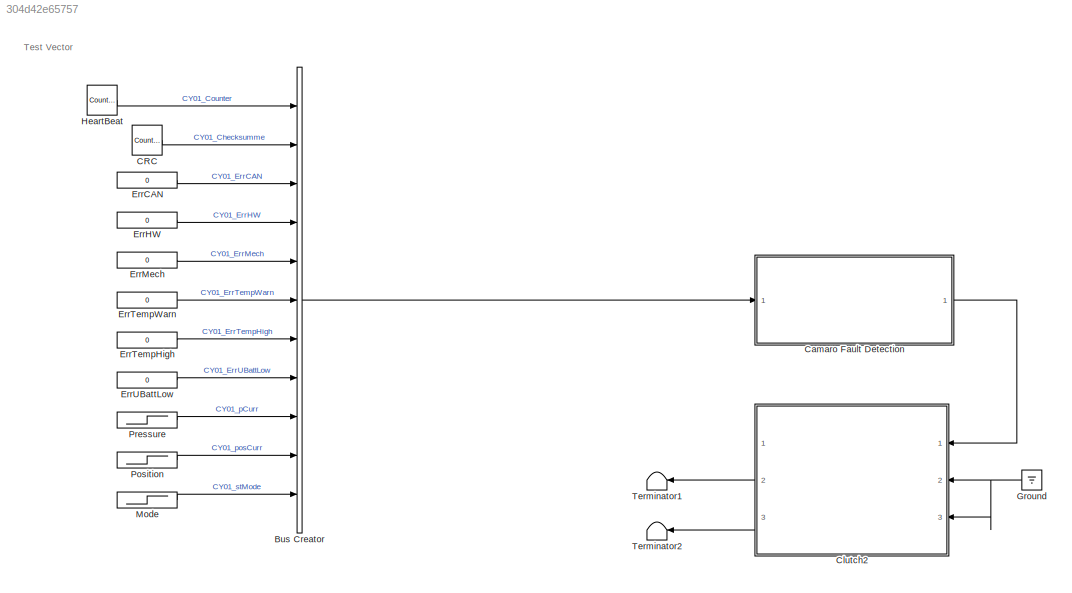
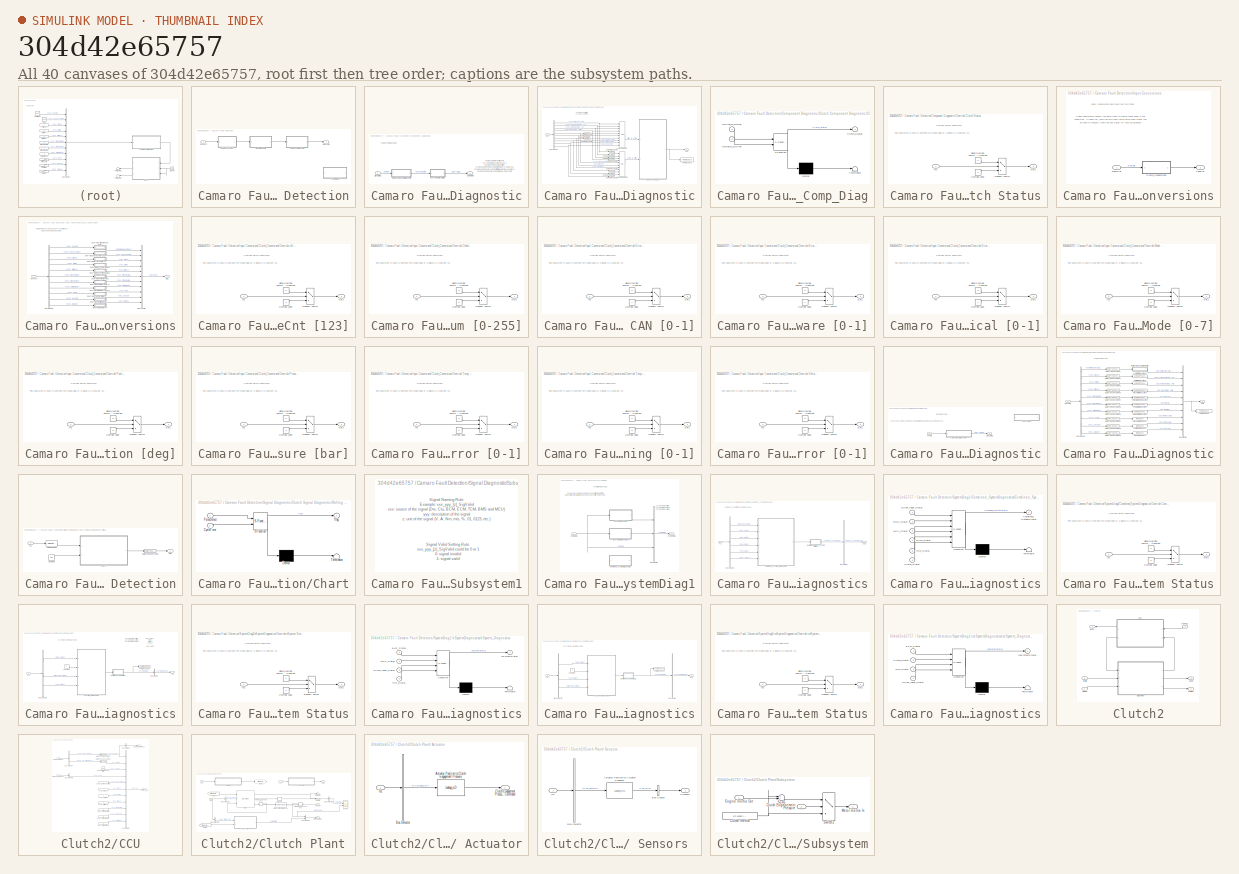
[diagram: thumbnail index - all 40 canvases of the model, root first then tree order]
MODEL slx_304d42e65757
KIND model
CONFIG AbsTol = auto
CONFIG EnableMultiTasking = off
CONFIG FixedStep = tloop
CONFIG InitFcn = clc\nclear all;\nCycleTime=49;\ntloop=0.01;
CONFIG MaxStep = auto
CONFIG MinStep = auto
CONFIG RelTol = 1e-3
CONFIG SampleTimeConstraint = Unconstrained
CONFIG Solver = FixedStepAuto
CONFIG SolverName = FixedStepAuto
CONFIG StartTime = 0.0
CONFIG StopTime = CycleTime
BLOCK [BusCreator] Bus Creator
  DisplayOption = bar
  InheritFromInputs = on
  Inputs = 11
  Ports = [11, 1]
BLOCK [Reference] CRC   REF=simulink/Sources/Counter
Free-Running
  Ports = [0, 1]
  SourceBlock = simulink/Sources/Counter\nFree-Running
  SourceProductBaseCode = SL
  SourceProductName = Simulink
  SourceType = Counter Free-Running
BLOCK [SubSystem] Camaro Fault Detection
  AncestorBlock = lib_FaultDetection/Camaro Fault Detection
  Ports = [1, 1]
  RequestExecContextInheritance = off
  Variant = off
BLOCK [SubSystem] Camaro Fault Detection/Component Diagnostic
  Ports = [1, 1]
  RequestExecContextInheritance = off
  Variant = off
BLOCK [SubSystem] Camaro Fault Detection/Component Diagnostic/Clutch Component Diagnostic
  Ports = [1, 1]
  RequestExecContextInheritance = off
  Variant = off
BLOCK [BusSelector] Camaro Fault Detection/Component Diagnostic/Clutch Component Diagnostic/Bus Selector
  OutputAsBus = off
  OutputSignals = CCM_RollingAliveActive_SigValid,CCM_CANTransmission_Valid,CCM_HardwareStatus_Valid,CCM_MechStatus_Valid,CCM_WarnTemp,CCM_ErrTemp,CCM_ErrVoltage,CCM_PistPressValid,CCM_PistPosValid,CCM_ModeValid
  Ports = [1, 10]
BLOCK [SubSystem] Camaro Fault Detection/Component Diagnostic/Clutch Component Diagnostic/Clutch_Comp_Diag
  ErrorFcn = Stateflow.Translate.translate
  PermitHierarchicalResolution = ExplicitOnly
  Ports = [2, 1]
  RequestExecContextInheritance = off
  SFBlockType = Chart
  TreatAsAtomicUnit = on
  Variant = off
BLOCK [Demux] Camaro Fault Detection/Component Diagnostic/Clutch Component Diagnostic/Clutch_Comp_Diag/ Demux 
  Outputs = 1
  Ports = [1, 1]
BLOCK [S-Function] Camaro Fault Detection/Component Diagnostic/Clutch Component Diagnostic/Clutch_Comp_Diag/ SFunction 
  EnableBusSupport = on
  FunctionName = sf_sfun
  PortCounts = [2 2]
  Ports = [2, 2]
  SFcnIsStateOwnerBlock = off
  SFunctionDeploymentMode = off
  Tag = Stateflow S-Function Clutch_TestBench 43
BLOCK [Terminator] Camaro Fault Detection/Component Diagnostic/Clutch Component Diagnostic/Clutch_Comp_Diag/ Terminator 
BLOCK [Outport] Camaro Fault Detection/Component Diagnostic/Clutch Component Diagnostic/Clutch_Comp_Diag/Clutch_Status
  IconDisplay = Port number
BLOCK [Inport] Camaro Fault Detection/Component Diagnostic/Clutch Component Diagnostic/Clutch_Comp_Diag/Offline_to_Online
  IconDisplay = Port number
BLOCK [Inport] Camaro Fault Detection/Component Diagnostic/Clutch Component Diagnostic/Clutch_Comp_Diag/Online_to_Offline
  IconDisplay = Port number
  Port = 2
BLOCK [Reference] Camaro Fault Detection/Component Diagnostic/Clutch Component Diagnostic/Compare To Zero  REF=simulink/Logic and Bit
Operations/Compare
To Zero
  Ports = [1, 1]
  SourceBlock = simulink/Logic and Bit\nOperations/Compare\nTo Zero
  SourceProductBaseCode = SL
  SourceProductName = Simulink
  SourceType = Compare To Zero
BLOCK [Reference] Camaro Fault Detection/Component Diagnostic/Clutch Component Diagnostic/Compare To Zero1  REF=simulink/Logic and Bit
Operations/Compare
To Zero
  Ports = [1, 1]
  SourceBlock = simulink/Logic and Bit\nOperations/Compare\nTo Zero
  SourceProductBaseCode = SL
  SourceProductName = Simulink
  SourceType = Compare To Zero
BLOCK [Reference] Camaro Fault Detection/Component Diagnostic/Clutch Component Diagnostic/Compare To Zero2  REF=simulink/Logic and Bit
Operations/Compare
To Zero
  Ports = [1, 1]
  SourceBlock = simulink/Logic and Bit\nOperations/Compare\nTo Zero
  SourceProductBaseCode = SL
  SourceProductName = Simulink
  SourceType = Compare To Zero
BLOCK [Reference] Camaro Fault Detection/Component Diagnostic/Clutch Component Diagnostic/Compare To Zero3  REF=simulink/Logic and Bit
Operations/Compare
To Zero
  Ports = [1, 1]
  SourceBlock = simulink/Logic and Bit\nOperations/Compare\nTo Zero
  SourceProductBaseCode = SL
  SourceProductName = Simulink
  SourceType = Compare To Zero
BLOCK [Reference] Camaro Fault Detection/Component Diagnostic/Clutch Component Diagnostic/Compare To Zero4  REF=simulink/Logic and Bit
Operations/Compare
To Zero
  Ports = [1, 1]
  SourceBlock = simulink/Logic and Bit\nOperations/Compare\nTo Zero
  SourceProductBaseCode = SL
  SourceProductName = Simulink
  SourceType = Compare To Zero
BLOCK [Reference] Camaro Fault Detection/Component Diagnostic/Clutch Component Diagnostic/Compare To Zero5  REF=simulink/Logic and Bit
Operations/Compare
To Zero
  Ports = [1, 1]
  SourceBlock = simulink/Logic and Bit\nOperations/Compare\nTo Zero
  SourceProductBaseCode = SL
  SourceProductName = Simulink
  SourceType = Compare To Zero
BLOCK [Reference] Camaro Fault Detection/Component Diagnostic/Clutch Component Diagnostic/Compare To Zero6  REF=simulink/Logic and Bit
Operations/Compare
To Zero
  Ports = [1, 1]
  SourceBlock = simulink/Logic and Bit\nOperations/Compare\nTo Zero
  SourceProductBaseCode = SL
  SourceProductName = Simulink
  SourceType = Compare To Zero
BLOCK [Reference] Camaro Fault Detection/Component Diagnostic/Clutch Component Diagnostic/Compare To Zero7  REF=simulink/Logic and Bit
Operations/Compare
To Zero
  Ports = [1, 1]
  SourceBlock = simulink/Logic and Bit\nOperations/Compare\nTo Zero
  SourceProductBaseCode = SL
  SourceProductName = Simulink
  SourceType = Compare To Zero
BLOCK [Reference] Camaro Fault Detection/Component Diagnostic/Clutch Component Diagnostic/Compare To Zero8  REF=simulink/Logic and Bit
Operations/Compare
To Zero
  Ports = [1, 1]
  SourceBlock = simulink/Logic and Bit\nOperations/Compare\nTo Zero
  SourceProductBaseCode = SL
  SourceProductName = Simulink
  SourceType = Compare To Zero
BLOCK [Reference] Camaro Fault Detection/Component Diagnostic/Clutch Component Diagnostic/Compare To Zero9  REF=simulink/Logic and Bit
Operations/Compare
To Zero
  Ports = [1, 1]
  SourceBlock = simulink/Logic and Bit\nOperations/Compare\nTo Zero
  SourceProductBaseCode = SL
  SourceProductName = Simulink
  SourceType = Compare To Zero
BLOCK [Inport] Camaro Fault Detection/Component Diagnostic/Clutch Component Diagnostic/In1
  IconDisplay = Port number
BLOCK [Logic] Camaro Fault Detection/Component Diagnostic/Clutch Component Diagnostic/Logical Operator
  AllPortsSameDT = off
  Inputs = 10
  OutDataTypeStr = boolean
  Ports = [10, 1]
BLOCK [Logic] Camaro Fault Detection/Component Diagnostic/Clutch Component Diagnostic/Logical Operator1
  AllPortsSameDT = off
  Inputs = 10
  Operator = OR
  OutDataTypeStr = boolean
  Ports = [10, 1]
BLOCK [Outport] Camaro Fault Detection/Component Diagnostic/Clutch Component Diagnostic/Out1
  IconDisplay = Port number
BLOCK [ToWorkspace] Camaro Fault Detection/Component Diagnostic/Clutch Component Diagnostic/To Workspace
  FixptAsFi = on
  MaxDataPoints = inf
  Ports = [1]
  SampleTime = -1
  Save2DSignal = 3-D array (concatenate along third dimension)
  VariableName = Clutch_Status
BLOCK [Outport] Camaro Fault Detection/Component Diagnostic/CompDiag
  IconDisplay = Port number
BLOCK [SubSystem] Camaro Fault Detection/Component Diagnostic/Override Clutch Status
  Ports = [1, 1]
  RequestExecContextInheritance = off
  Variant = off
BLOCK [Inport] Camaro Fault Detection/Component Diagnostic/Override Clutch Status/In1
  IconDisplay = Port number
BLOCK [MultiPortSwitch] Camaro Fault Detection/Component Diagnostic/Override Clutch Status/Multiport Switch
  DataPortOrder = Zero-based contiguous
  InputSameDT = off
  Inputs = 2
  Ports = [3, 1]
  SaturateOnIntegerOverflow = off
  zeroidx = on
BLOCK [Outport] Camaro Fault Detection/Component Diagnostic/Override Clutch Status/Out1
  IconDisplay = Port number
BLOCK [Constant] Camaro Fault Detection/Component Diagnostic/Override Clutch Status/Override Value
  OutDataTypeStr = double
  Value = 2
BLOCK [Constant] Camaro Fault Detection/Component Diagnostic/Override Clutch Status/Signal Override Switch 0 = Use Model 1 = Use Constant
  Value = 0
BLOCK [Inport] Camaro Fault Detection/Component Diagnostic/SignalDiag
  IconDisplay = Port number
BLOCK [Outport] Camaro Fault Detection/Diagnostic
  IconDisplay = Port number
BLOCK [SubSystem] Camaro Fault Detection/Input Conversions
  Ports = [1, 1]
  RequestExecContextInheritance = off
  Variant = off
BLOCK [SubSystem] Camaro Fault Detection/Input Conversions/Clutch_Conversions
  Ports = [1, 1]
  RequestExecContextInheritance = off
  Variant = off
BLOCK [BusCreator] Camaro Fault Detection/Input Conversions/Clutch_Conversions/Bus Creator
  DisplayOption = bar
  InheritFromInputs = on
  Inputs = 11
  Ports = [11, 1]
BLOCK [BusSelector] Camaro Fault Detection/Input Conversions/Clutch_Conversions/Bus Selector
  OutputAsBus = off
  OutputSignals = CY01_Counter,CY01_Checksumme,CY01_ErrCAN,CY01_ErrHW,CY01_ErrMech,CY01_ErrTempWarn,CY01_ErrTempHigh,CY01_ErrUBattLow,CY01_pCurr,CY01_posCurr,CY01_stMode
  Ports = [1, 11]
BLOCK [Outport] Camaro Fault Detection/Input Conversions/Clutch_Conversions/Out1
  IconDisplay = Port number
BLOCK [SubSystem] Camaro Fault Detection/Input Conversions/Clutch_Conversions/Override  rollingAliveCnt [123]
  Ports = [1, 1]
  RequestExecContextInheritance = off
  Variant = off
BLOCK [Inport] Camaro Fault Detection/Input Conversions/Clutch_Conversions/Override  rollingAliveCnt [123]/In1
  IconDisplay = Port number
BLOCK [MultiPortSwitch] Camaro Fault Detection/Input Conversions/Clutch_Conversions/Override  rollingAliveCnt [123]/Multiport Switch
  DataPortOrder = Zero-based contiguous
  InputSameDT = off
  Inputs = 2
  Ports = [3, 1]
  SaturateOnIntegerOverflow = off
  zeroidx = on
BLOCK [Outport] Camaro Fault Detection/Input Conversions/Clutch_Conversions/Override  rollingAliveCnt [123]/Out1
  IconDisplay = Port number
BLOCK [Constant] Camaro Fault Detection/Input Conversions/Clutch_Conversions/Override  rollingAliveCnt [123]/Override Value
  OutDataTypeStr = double
  Value = 0
BLOCK [Constant] Camaro Fault Detection/Input Conversions/Clutch_Conversions/Override  rollingAliveCnt [123]/Signal Override Switch 0 = Use Model 1 = Use Constant
  Value = 0
BLOCK [SubSystem] Camaro Fault Detection/Input Conversions/Clutch_Conversions/Override Checksum [0-255]
  Ports = [1, 1]
  RequestExecContextInheritance = off
  Variant = off
BLOCK [Inport] Camaro Fault Detection/Input Conversions/Clutch_Conversions/Override Checksum [0-255]/In1
  IconDisplay = Port number
BLOCK [MultiPortSwitch] Camaro Fault Detection/Input Conversions/Clutch_Conversions/Override Checksum [0-255]/Multiport Switch
  DataPortOrder = Zero-based contiguous
  InputSameDT = off
  Inputs = 2
  Ports = [3, 1]
  SaturateOnIntegerOverflow = off
  zeroidx = on
BLOCK [Outport] Camaro Fault Detection/Input Conversions/Clutch_Conversions/Override Checksum [0-255]/Out1
  IconDisplay = Port number
BLOCK [Constant] Camaro Fault Detection/Input Conversions/Clutch_Conversions/Override Checksum [0-255]/Override Value
  OutDataTypeStr = double
  Value = 0
BLOCK [Constant] Camaro Fault Detection/Input Conversions/Clutch_Conversions/Override Checksum [0-255]/Signal Override Switch 0 = Use Model 1 = Use Constant
  Value = 0
BLOCK [SubSystem] Camaro Fault Detection/Input Conversions/Clutch_Conversions/Override Error CAN [0-1]
  Ports = [1, 1]
  RequestExecContextInheritance = off
  Variant = off
BLOCK [Inport] Camaro Fault Detection/Input Conversions/Clutch_Conversions/Override Error CAN [0-1]/In1
  IconDisplay = Port number
BLOCK [MultiPortSwitch] Camaro Fault Detection/Input Conversions/Clutch_Conversions/Override Error CAN [0-1]/Multiport Switch
  DataPortOrder = Zero-based contiguous
  InputSameDT = off
  Inputs = 2
  Ports = [3, 1]
  SaturateOnIntegerOverflow = off
  zeroidx = on
BLOCK [Outport] Camaro Fault Detection/Input Conversions/Clutch_Conversions/Override Error CAN [0-1]/Out1
  IconDisplay = Port number
BLOCK [Constant] Camaro Fault Detection/Input Conversions/Clutch_Conversions/Override Error CAN [0-1]/Override Value
  OutDataTypeStr = double
BLOCK [Constant] Camaro Fault Detection/Input Conversions/Clutch_Conversions/Override Error CAN [0-1]/Signal Override Switch 0 = Use Model 1 = Use Constant
  Value = 0
BLOCK [SubSystem] Camaro Fault Detection/Input Conversions/Clutch_Conversions/Override Error Hardware [0-1]
  Ports = [1, 1]
  RequestExecContextInheritance = off
  Variant = off
BLOCK [Inport] Camaro Fault Detection/Input Conversions/Clutch_Conversions/Override Error Hardware [0-1]/In1
  IconDisplay = Port number
BLOCK [MultiPortSwitch] Camaro Fault Detection/Input Conversions/Clutch_Conversions/Override Error Hardware [0-1]/Multiport Switch
  DataPortOrder = Zero-based contiguous
  InputSameDT = off
  Inputs = 2
  Ports = [3, 1]
  SaturateOnIntegerOverflow = off
  zeroidx = on
BLOCK [Outport] Camaro Fault Detection/Input Conversions/Clutch_Conversions/Override Error Hardware [0-1]/Out1
  IconDisplay = Port number
BLOCK [Constant] Camaro Fault Detection/Input Conversions/Clutch_Conversions/Override Error Hardware [0-1]/Override Value
  OutDataTypeStr = double
BLOCK [Constant] Camaro Fault Detection/Input Conversions/Clutch_Conversions/Override Error Hardware [0-1]/Signal Override Switch 0 = Use Model 1 = Use Constant
  Value = 0
BLOCK [SubSystem] Camaro Fault Detection/Input Conversions/Clutch_Conversions/Override Error Mechanical [0-1]
  Ports = [1, 1]
  RequestExecContextInheritance = off
  Variant = off
BLOCK [Inport] Camaro Fault Detection/Input Conversions/Clutch_Conversions/Override Error Mechanical [0-1]/In1
  IconDisplay = Port number
BLOCK [MultiPortSwitch] Camaro Fault Detection/Input Conversions/Clutch_Conversions/Override Error Mechanical [0-1]/Multiport Switch
  DataPortOrder = Zero-based contiguous
  InputSameDT = off
  Inputs = 2
  Ports = [3, 1]
  SaturateOnIntegerOverflow = off
  zeroidx = on
BLOCK [Outport] Camaro Fault Detection/Input Conversions/Clutch_Conversions/Override Error Mechanical [0-1]/Out1
  IconDisplay = Port number
BLOCK [Constant] Camaro Fault Detection/Input Conversions/Clutch_Conversions/Override Error Mechanical [0-1]/Override Value
  OutDataTypeStr = double
BLOCK [Constant] Camaro Fault Detection/Input Conversions/Clutch_Conversions/Override Error Mechanical [0-1]/Signal Override Switch 0 = Use Model 1 = Use Constant
  Value = 0
BLOCK [SubSystem] Camaro Fault Detection/Input Conversions/Clutch_Conversions/Override Mode [0-7]
  Ports = [1, 1]
  RequestExecContextInheritance = off
  Variant = off
BLOCK [Inport] Camaro Fault Detection/Input Conversions/Clutch_Conversions/Override Mode [0-7]/In1
  IconDisplay = Port number
BLOCK [MultiPortSwitch] Camaro Fault Detection/Input Conversions/Clutch_Conversions/Override Mode [0-7]/Multiport Switch
  DataPortOrder = Zero-based contiguous
  InputSameDT = off
  Inputs = 2
  Ports = [3, 1]
  SaturateOnIntegerOverflow = off
  zeroidx = on
BLOCK [Outport] Camaro Fault Detection/Input Conversions/Clutch_Conversions/Override Mode [0-7]/Out1
  IconDisplay = Port number
BLOCK [Constant] Camaro Fault Detection/Input Conversions/Clutch_Conversions/Override Mode [0-7]/Override Value
  OutDataTypeStr = double
  Value = 0
BLOCK [Constant] Camaro Fault Detection/Input Conversions/Clutch_Conversions/Override Mode [0-7]/Signal Override Switch 0 = Use Model 1 = Use Constant
  Value = 0
BLOCK [SubSystem] Camaro Fault Detection/Input Conversions/Clutch_Conversions/Override Position [deg]
  Ports = [1, 1]
  RequestExecContextInheritance = off
  Variant = off
BLOCK [Inport] Camaro Fault Detection/Input Conversions/Clutch_Conversions/Override Position [deg]/In1
  IconDisplay = Port number
BLOCK [MultiPortSwitch] Camaro Fault Detection/Input Conversions/Clutch_Conversions/Override Position [deg]/Multiport Switch
  DataPortOrder = Zero-based contiguous
  InputSameDT = off
  Inputs = 2
  Ports = [3, 1]
  SaturateOnIntegerOverflow = off
  zeroidx = on
BLOCK [Outport] Camaro Fault Detection/Input Conversions/Clutch_Conversions/Override Position [deg]/Out1
  IconDisplay = Port number
BLOCK [Constant] Camaro Fault Detection/Input Conversions/Clutch_Conversions/Override Position [deg]/Override Value
  OutDataTypeStr = double
  Value = 0
BLOCK [Constant] Camaro Fault Detection/Input Conversions/Clutch_Conversions/Override Position [deg]/Signal Override Switch 0 = Use Model 1 = Use Constant
  Value = 0
BLOCK [SubSystem] Camaro Fault Detection/Input Conversions/Clutch_Conversions/Override Pressure [bar]
  Ports = [1, 1]
  RequestExecContextInheritance = off
  Variant = off
BLOCK [Inport] Camaro Fault Detection/Input Conversions/Clutch_Conversions/Override Pressure [bar]/In1
  IconDisplay = Port number
BLOCK [MultiPortSwitch] Camaro Fault Detection/Input Conversions/Clutch_Conversions/Override Pressure [bar]/Multiport Switch
  DataPortOrder = Zero-based contiguous
  InputSameDT = off
  Inputs = 2
  Ports = [3, 1]
  SaturateOnIntegerOverflow = off
  zeroidx = on
BLOCK [Outport] Camaro Fault Detection/Input Conversions/Clutch_Conversions/Override Pressure [bar]/Out1
  IconDisplay = Port number
BLOCK [Constant] Camaro Fault Detection/Input Conversions/Clutch_Conversions/Override Pressure [bar]/Override Value
  OutDataTypeStr = double
  Value = 0
BLOCK [Constant] Camaro Fault Detection/Input Conversions/Clutch_Conversions/Override Pressure [bar]/Signal Override Switch 0 = Use Model 1 = Use Constant
  Value = 0
BLOCK [SubSystem] Camaro Fault Detection/Input Conversions/Clutch_Conversions/Override Temp Error [0-1]
  Ports = [1, 1]
  RequestExecContextInheritance = off
  Variant = off
BLOCK [Inport] Camaro Fault Detection/Input Conversions/Clutch_Conversions/Override Temp Error [0-1]/In1
  IconDisplay = Port number
BLOCK [MultiPortSwitch] Camaro Fault Detection/Input Conversions/Clutch_Conversions/Override Temp Error [0-1]/Multiport Switch
  DataPortOrder = Zero-based contiguous
  InputSameDT = off
  Inputs = 2
  Ports = [3, 1]
  SaturateOnIntegerOverflow = off
  zeroidx = on
BLOCK [Outport] Camaro Fault Detection/Input Conversions/Clutch_Conversions/Override Temp Error [0-1]/Out1
  IconDisplay = Port number
BLOCK [Constant] Camaro Fault Detection/Input Conversions/Clutch_Conversions/Override Temp Error [0-1]/Override Value
  OutDataTypeStr = double
  Value = 0
BLOCK [Constant] Camaro Fault Detection/Input Conversions/Clutch_Conversions/Override Temp Error [0-1]/Signal Override Switch 0 = Use Model 1 = Use Constant
  Value = 0
BLOCK [SubSystem] Camaro Fault Detection/Input Conversions/Clutch_Conversions/Override Temp Warning [0-1]
  Ports = [1, 1]
  RequestExecContextInheritance = off
  Variant = off
BLOCK [Inport] Camaro Fault Detection/Input Conversions/Clutch_Conversions/Override Temp Warning [0-1]/In1
  IconDisplay = Port number
BLOCK [MultiPortSwitch] Camaro Fault Detection/Input Conversions/Clutch_Conversions/Override Temp Warning [0-1]/Multiport Switch
  DataPortOrder = Zero-based contiguous
  InputSameDT = off
  Inputs = 2
  Ports = [3, 1]
  SaturateOnIntegerOverflow = off
  zeroidx = on
BLOCK [Outport] Camaro Fault Detection/Input Conversions/Clutch_Conversions/Override Temp Warning [0-1]/Out1
  IconDisplay = Port number
BLOCK [Constant] Camaro Fault Detection/Input Conversions/Clutch_Conversions/Override Temp Warning [0-1]/Override Value
  OutDataTypeStr = double
  Value = 0
BLOCK [Constant] Camaro Fault Detection/Input Conversions/Clutch_Conversions/Override Temp Warning [0-1]/Signal Override Switch 0 = Use Model 1 = Use Constant
  Value = 0
BLOCK [SubSystem] Camaro Fault Detection/Input Conversions/Clutch_Conversions/Override Voltage Error [0-1]
  Ports = [1, 1]
  RequestExecContextInheritance = off
  Variant = off
BLOCK [Inport] Camaro Fault Detection/Input Conversions/Clutch_Conversions/Override Voltage Error [0-1]/In1
  IconDisplay = Port number
BLOCK [MultiPortSwitch] Camaro Fault Detection/Input Conversions/Clutch_Conversions/Override Voltage Error [0-1]/Multiport Switch
  DataPortOrder = Zero-based contiguous
  InputSameDT = off
  Inputs = 2
  Ports = [3, 1]
  SaturateOnIntegerOverflow = off
  zeroidx = on
BLOCK [Outport] Camaro Fault Detection/Input Conversions/Clutch_Conversions/Override Voltage Error [0-1]/Out1
  IconDisplay = Port number
BLOCK [Constant] Camaro Fault Detection/Input Conversions/Clutch_Conversions/Override Voltage Error [0-1]/Override Value
  OutDataTypeStr = double
  Value = 0
BLOCK [Constant] Camaro Fault Detection/Input Conversions/Clutch_Conversions/Override Voltage Error [0-1]/Signal Override Switch 0 = Use Model 1 = Use Constant
  Value = 0
BLOCK [Inport] Camaro Fault Detection/Input Conversions/Clutch_Conversions/Sensors
  IconDisplay = Port number
BLOCK [Inport] Camaro Fault Detection/Input Conversions/RawSig
  IconDisplay = Port number
BLOCK [Outport] Camaro Fault Detection/Input Conversions/VehSig
  IconDisplay = Port number
BLOCK [Inport] Camaro Fault Detection/Sensors
  IconDisplay = Port number
BLOCK [SubSystem] Camaro Fault Detection/Signal Diagnostic
  Ports = [1, 1]
  RequestExecContextInheritance = off
  Variant = off
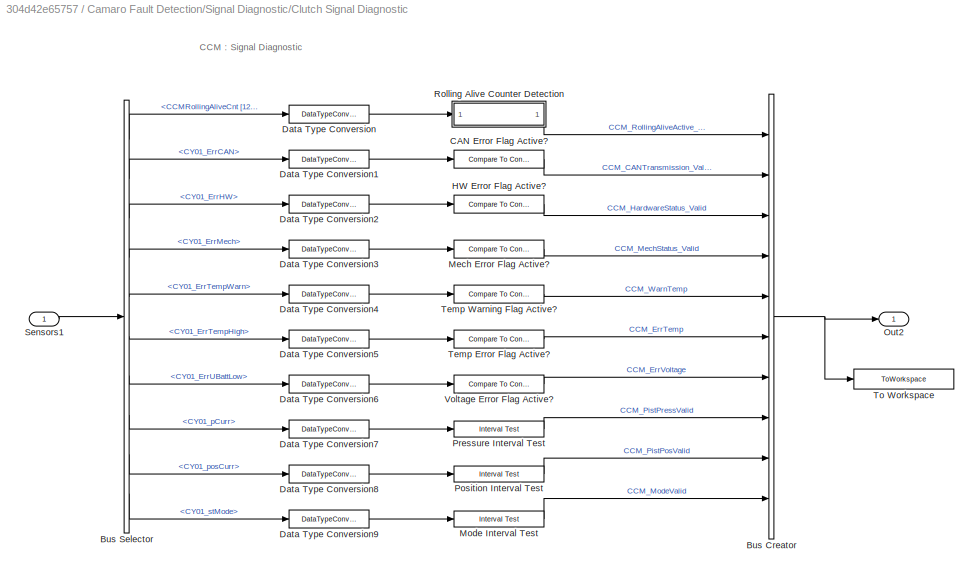
BLOCK [SubSystem] Camaro Fault Detection/Signal Diagnostic/Clutch Signal Diagnostic
  Ports = [1, 1]
  RequestExecContextInheritance = off
  Variant = off
BLOCK [BusCreator] Camaro Fault Detection/Signal Diagnostic/Clutch Signal Diagnostic/Bus Creator
  DisplayOption = bar
  InheritFromInputs = on
  Inputs = 10
  Ports = [10, 1]
BLOCK [BusSelector] Camaro Fault Detection/Signal Diagnostic/Clutch Signal Diagnostic/Bus Selector
  OutputAsBus = off
  OutputSignals = CCMRollingAliveCnt [123],CY01_ErrCAN,CY01_ErrHW,CY01_ErrMech,CY01_ErrTempWarn,CY01_ErrTempHigh,CY01_ErrUBattLow,CY01_pCurr,CY01_posCurr,CY01_stMode
  Ports = [1, 10]
BLOCK [Reference] Camaro Fault Detection/Signal Diagnostic/Clutch Signal Diagnostic/CAN Error Flag Active?  REF=simulink/Logic and Bit
Operations/Compare
To Constant
  Ports = [1, 1]
  SourceBlock = simulink/Logic and Bit\nOperations/Compare\nTo Constant
  SourceProductBaseCode = SL
  SourceProductName = Simulink
  SourceType = Compare To Constant
BLOCK [DataTypeConversion] Camaro Fault Detection/Signal Diagnostic/Clutch Signal Diagnostic/Data Type Conversion
  OutDataTypeStr = int8
  RndMeth = Floor
  SaturateOnIntegerOverflow = off
BLOCK [DataTypeConversion] Camaro Fault Detection/Signal Diagnostic/Clutch Signal Diagnostic/Data Type Conversion1
  OutDataTypeStr = boolean
  RndMeth = Floor
  SaturateOnIntegerOverflow = off
BLOCK [DataTypeConversion] Camaro Fault Detection/Signal Diagnostic/Clutch Signal Diagnostic/Data Type Conversion2
  OutDataTypeStr = boolean
  RndMeth = Floor
  SaturateOnIntegerOverflow = off
BLOCK [DataTypeConversion] Camaro Fault Detection/Signal Diagnostic/Clutch Signal Diagnostic/Data Type Conversion3
  OutDataTypeStr = boolean
  RndMeth = Floor
  SaturateOnIntegerOverflow = off
BLOCK [DataTypeConversion] Camaro Fault Detection/Signal Diagnostic/Clutch Signal Diagnostic/Data Type Conversion4
  OutDataTypeStr = boolean
  RndMeth = Floor
  SaturateOnIntegerOverflow = off
BLOCK [DataTypeConversion] Camaro Fault Detection/Signal Diagnostic/Clutch Signal Diagnostic/Data Type Conversion5
  OutDataTypeStr = boolean
  RndMeth = Floor
  SaturateOnIntegerOverflow = off
BLOCK [DataTypeConversion] Camaro Fault Detection/Signal Diagnostic/Clutch Signal Diagnostic/Data Type Conversion6
  OutDataTypeStr = boolean
  RndMeth = Floor
  SaturateOnIntegerOverflow = off
BLOCK [DataTypeConversion] Camaro Fault Detection/Signal Diagnostic/Clutch Signal Diagnostic/Data Type Conversion7
  OutDataTypeStr = double
  RndMeth = Floor
  SaturateOnIntegerOverflow = off
BLOCK [DataTypeConversion] Camaro Fault Detection/Signal Diagnostic/Clutch Signal Diagnostic/Data Type Conversion8
  OutDataTypeStr = double
  RndMeth = Floor
  SaturateOnIntegerOverflow = off
BLOCK [DataTypeConversion] Camaro Fault Detection/Signal Diagnostic/Clutch Signal Diagnostic/Data Type Conversion9
  OutDataTypeStr = int8
  RndMeth = Floor
  SaturateOnIntegerOverflow = off
BLOCK [Reference] Camaro Fault Detection/Signal Diagnostic/Clutch Signal Diagnostic/HW Error Flag Active?  REF=simulink/Logic and Bit
Operations/Compare
To Constant
  Ports = [1, 1]
  SourceBlock = simulink/Logic and Bit\nOperations/Compare\nTo Constant
  SourceProductBaseCode = SL
  SourceProductName = Simulink
  SourceType = Compare To Constant
BLOCK [Reference] Camaro Fault Detection/Signal Diagnostic/Clutch Signal Diagnostic/Mech Error Flag Active?  REF=simulink/Logic and Bit
Operations/Compare
To Constant
  Ports = [1, 1]
  SourceBlock = simulink/Logic and Bit\nOperations/Compare\nTo Constant
  SourceProductBaseCode = SL
  SourceProductName = Simulink
  SourceType = Compare To Constant
BLOCK [Reference] Camaro Fault Detection/Signal Diagnostic/Clutch Signal Diagnostic/Mode Interval Test  REF=simulink/Logic and Bit
Operations/Interval Test
  Ports = [1, 1]
  SourceBlock = simulink/Logic and Bit\nOperations/Interval Test
  SourceProductBaseCode = SL
  SourceProductName = Simulink
  SourceType = Interval Test
BLOCK [Outport] Camaro Fault Detection/Signal Diagnostic/Clutch Signal Diagnostic/Out2
  IconDisplay = Port number
BLOCK [Reference] Camaro Fault Detection/Signal Diagnostic/Clutch Signal Diagnostic/Position Interval Test  REF=simulink/Logic and Bit
Operations/Interval Test
  Ports = [1, 1]
  SourceBlock = simulink/Logic and Bit\nOperations/Interval Test
  SourceProductBaseCode = SL
  SourceProductName = Simulink
  SourceType = Interval Test
BLOCK [Reference] Camaro Fault Detection/Signal Diagnostic/Clutch Signal Diagnostic/Pressure Interval Test  REF=simulink/Logic and Bit
Operations/Interval Test
  Ports = [1, 1]
  SourceBlock = simulink/Logic and Bit\nOperations/Interval Test
  SourceProductBaseCode = SL
  SourceProductName = Simulink
  SourceType = Interval Test
BLOCK [SubSystem] Camaro Fault Detection/Signal Diagnostic/Clutch Signal Diagnostic/Rolling Alive Counter Detection
  Ports = [1, 1]
  RequestExecContextInheritance = off
  Variant = off
BLOCK [SubSystem] Camaro Fault Detection/Signal Diagnostic/Clutch Signal Diagnostic/Rolling Alive Counter Detection/Chart
  ErrorFcn = Stateflow.Translate.translate
  PermitHierarchicalResolution = ExplicitOnly
  Ports = [2, 1]
  RequestExecContextInheritance = off
  SFBlockType = Chart
  TreatAsAtomicUnit = on
  Variant = off
BLOCK [Demux] Camaro Fault Detection/Signal Diagnostic/Clutch Signal Diagnostic/Rolling Alive Counter Detection/Chart/ Demux 
  Outputs = 1
  Ports = [1, 1]
BLOCK [S-Function] Camaro Fault Detection/Signal Diagnostic/Clutch Signal Diagnostic/Rolling Alive Counter Detection/Chart/ SFunction 
  EnableBusSupport = on
  FunctionName = sf_sfun
  Parameters = tloop
  PortCounts = [2 2]
  Ports = [2, 2]
  SFcnIsStateOwnerBlock = off
  SFunctionDeploymentMode = off
  Tag = Stateflow S-Function Clutch_TestBench 10
BLOCK [Terminator] Camaro Fault Detection/Signal Diagnostic/Clutch Signal Diagnostic/Rolling Alive Counter Detection/Chart/ Terminator 
BLOCK [Inport] Camaro Fault Detection/Signal Diagnostic/Clutch Signal Diagnostic/Rolling Alive Counter Detection/Chart/CycleTime
  IconDisplay = Port number
  Port = 2
BLOCK [Inport] Camaro Fault Detection/Signal Diagnostic/Clutch Signal Diagnostic/Rolling Alive Counter Detection/Chart/PulseDetect
  IconDisplay = Port number
BLOCK [Outport] Camaro Fault Detection/Signal Diagnostic/Clutch Signal Diagnostic/Rolling Alive Counter Detection/Chart/flag
  IconDisplay = Port number
BLOCK [Constant] Camaro Fault Detection/Signal Diagnostic/Clutch Signal Diagnostic/Rolling Alive Counter Detection/Constant
  Value = 0.01
BLOCK [DataTypeConversion] Camaro Fault Detection/Signal Diagnostic/Clutch Signal Diagnostic/Rolling Alive Counter Detection/Data Type Conversion
  OutDataTypeStr = boolean
  RndMeth = Floor
  SaturateOnIntegerOverflow = off
BLOCK [Reference] Camaro Fault Detection/Signal Diagnostic/Clutch Signal Diagnostic/Rolling Alive Counter Detection/Detect Change  REF=simulink/Logic and Bit
Operations/Detect
Change
  Ports = [1, 1]
  SourceBlock = simulink/Logic and Bit\nOperations/Detect\nChange
  SourceProductBaseCode = SL
  SourceProductName = Simulink
  SourceType = Detect Change
BLOCK [Inport] Camaro Fault Detection/Signal Diagnostic/Clutch Signal Diagnostic/Rolling Alive Counter Detection/In1
  IconDisplay = Port number
BLOCK [Outport] Camaro Fault Detection/Signal Diagnostic/Clutch Signal Diagnostic/Rolling Alive Counter Detection/Out1
  IconDisplay = Port number
BLOCK [Inport] Camaro Fault Detection/Signal Diagnostic/Clutch Signal Diagnostic/Sensors1
  IconDisplay = Port number
BLOCK [Reference] Camaro Fault Detection/Signal Diagnostic/Clutch Signal Diagnostic/Temp Error Flag Active?  REF=simulink/Logic and Bit
Operations/Compare
To Constant
  Ports = [1, 1]
  SourceBlock = simulink/Logic and Bit\nOperations/Compare\nTo Constant
  SourceProductBaseCode = SL
  SourceProductName = Simulink
  SourceType = Compare To Constant
BLOCK [Reference] Camaro Fault Detection/Signal Diagnostic/Clutch Signal Diagnostic/Temp Warning Flag Active?  REF=simulink/Logic and Bit
Operations/Compare
To Constant
  Ports = [1, 1]
  SourceBlock = simulink/Logic and Bit\nOperations/Compare\nTo Constant
  SourceProductBaseCode = SL
  SourceProductName = Simulink
  SourceType = Compare To Constant
BLOCK [ToWorkspace] Camaro Fault Detection/Signal Diagnostic/Clutch Signal Diagnostic/To Workspace
  FixptAsFi = on
  MaxDataPoints = inf
  Ports = [1]
  SampleTime = -1
  Save2DSignal = 3-D array (concatenate along third dimension)
  VariableName = Signal_Diagnostic
BLOCK [Reference] Camaro Fault Detection/Signal Diagnostic/Clutch Signal Diagnostic/Voltage Error Flag Active?  REF=simulink/Logic and Bit
Operations/Compare
To Constant
  Ports = [1, 1]
  SourceBlock = simulink/Logic and Bit\nOperations/Compare\nTo Constant
  SourceProductBaseCode = SL
  SourceProductName = Simulink
  SourceType = Compare To Constant
BLOCK [Outport] Camaro Fault Detection/Signal Diagnostic/SignalDiag
  IconDisplay = Port number
BLOCK [SubSystem] Camaro Fault Detection/Signal Diagnostic/Subsystem1
  Ports = []
  RequestExecContextInheritance = off
  Variant = off
BLOCK [Inport] Camaro Fault Detection/Signal Diagnostic/VehSig
  IconDisplay = Port number
BLOCK [SubSystem] Camaro Fault Detection/SystemDiag1
  AncestorBlock = lib_SystemDiag/SystemDiag
  Commented = on
  Ports = [1, 1]
  RequestExecContextInheritance = off
  Variant = off
BLOCK [BusCreator] Camaro Fault Detection/SystemDiag1/Bus Creator
  DisplayOption = bar
  InheritFromInputs = on
  Inputs = 3
  Ports = [3, 1]
BLOCK [SubSystem] Camaro Fault Detection/SystemDiag1/Combined_SystemDiagnostics
  Commented = through
  Ports = [1, 1]
  RequestExecContextInheritance = off
  Variant = off
BLOCK [BusCreator] Camaro Fault Detection/SystemDiag1/Combined_SystemDiagnostics/Bus Creator
  DisplayOption = bar
  InheritFromInputs = on
  Inputs = 1
  Ports = [1, 1]
BLOCK [BusSelector] Camaro Fault Detection/SystemDiag1/Combined_SystemDiagnostics/Bus Selector
  OutputAsBus = off
  OutputSignals = Driver_Input_Status.Driver_Input_Status,BMS_Status.BMS_Status,MCU_Status.MCU_Status,ECM_Status.ECM_Status,TCM_CompDiag.TCM_Status,Clutch_Status.Clutch_Status
  Ports = [1, 6]
BLOCK [SubSystem] Camaro Fault Detection/SystemDiag1/Combined_SystemDiagnostics/Combined_System_Diagnostics
  ErrorFcn = Stateflow.Translate.translate
  PermitHierarchicalResolution = ExplicitOnly
  Ports = [6, 1]
  RequestExecContextInheritance = off
  SFBlockType = Chart
  TreatAsAtomicUnit = on
  Variant = off
BLOCK [Demux] Camaro Fault Detection/SystemDiag1/Combined_SystemDiagnostics/Combined_System_Diagnostics/ Demux 
  Outputs = 1
  Ports = [1, 1]
BLOCK [S-Function] Camaro Fault Detection/SystemDiag1/Combined_SystemDiagnostics/Combined_System_Diagnostics/ SFunction 
  EnableBusSupport = on
  FunctionName = sf_sfun
  PortCounts = [6 2]
  Ports = [6, 2]
  SFcnIsStateOwnerBlock = off
  SFunctionDeploymentMode = off
  Tag = Stateflow S-Function Clutch_TestBench 1
BLOCK [Terminator] Camaro Fault Detection/SystemDiag1/Combined_SystemDiagnostics/Combined_System_Diagnostics/ Terminator 
BLOCK [Inport] Camaro Fault Detection/SystemDiag1/Combined_SystemDiagnostics/Combined_System_Diagnostics/BMS_Status
  IconDisplay = Port number
  Port = 2
BLOCK [Inport] Camaro Fault Detection/SystemDiag1/Combined_SystemDiagnostics/Combined_System_Diagnostics/Clutch_Status
  IconDisplay = Port number
  Port = 6
BLOCK [Outport] Camaro Fault Detection/SystemDiag1/Combined_SystemDiagnostics/Combined_System_Diagnostics/Combined_SystemStatus
  IconDisplay = Port number
BLOCK [Inport] Camaro Fault Detection/SystemDiag1/Combined_SystemDiagnostics/Combined_System_Diagnostics/Driver_Input_Status
  IconDisplay = Port number
BLOCK [Inport] Camaro Fault Detection/SystemDiag1/Combined_SystemDiagnostics/Combined_System_Diagnostics/ECM_Status
  IconDisplay = Port number
  Port = 4
BLOCK [Inport] Camaro Fault Detection/SystemDiag1/Combined_SystemDiagnostics/Combined_System_Diagnostics/MCU_Status
  IconDisplay = Port number
  Port = 3
BLOCK [Inport] Camaro Fault Detection/SystemDiag1/Combined_SystemDiagnostics/Combined_System_Diagnostics/TCM_Status
  IconDisplay = Port number
  Port = 5
BLOCK [Inport] Camaro Fault Detection/SystemDiag1/Combined_SystemDiagnostics/In1
  IconDisplay = Port number
BLOCK [Outport] Camaro Fault Detection/SystemDiag1/Combined_SystemDiagnostics/Out1
  IconDisplay = Port number
BLOCK [SubSystem] Camaro Fault Detection/SystemDiag1/Combined_SystemDiagnostics/Override Combined_System Status
  Ports = [1, 1]
  RequestExecContextInheritance = off
  Variant = off
BLOCK [Inport] Camaro Fault Detection/SystemDiag1/Combined_SystemDiagnostics/Override Combined_System Status/In1
  IconDisplay = Port number
BLOCK [MultiPortSwitch] Camaro Fault Detection/SystemDiag1/Combined_SystemDiagnostics/Override Combined_System Status/Multiport Switch
  DataPortOrder = Zero-based contiguous
  InputSameDT = off
  Inputs = 2
  Ports = [3, 1]
  SaturateOnIntegerOverflow = off
  zeroidx = on
BLOCK [Outport] Camaro Fault Detection/SystemDiag1/Combined_SystemDiagnostics/Override Combined_System Status/Out1
  IconDisplay = Port number
BLOCK [Constant] Camaro Fault Detection/SystemDiag1/Combined_SystemDiagnostics/Override Combined_System Status/Override Value
  OutDataTypeStr = double
  Value = 0
BLOCK [Constant] Camaro Fault Detection/SystemDiag1/Combined_SystemDiagnostics/Override Combined_System Status/Signal Override Switch 0 = Use Model 1 = Use Constant
  Value = 0
BLOCK [Inport] Camaro Fault Detection/SystemDiag1/CompDiag
  IconDisplay = Port number
BLOCK [Outport] Camaro Fault Detection/SystemDiag1/SystemDiag
  IconDisplay = Port number
BLOCK [SubSystem] Camaro Fault Detection/SystemDiag1/eSystemDiagnostics
  Ports = [1, 1]
  RequestExecContextInheritance = off
  Variant = off
BLOCK [BusCreator] Camaro Fault Detection/SystemDiag1/eSystemDiagnostics/Bus Creator
  DisplayOption = bar
  InheritFromInputs = on
  Inputs = 1
  Ports = [1, 1]
BLOCK [BusSelector] Camaro Fault Detection/SystemDiag1/eSystemDiagnostics/Bus Selector
  OutputAsBus = off
  OutputSignals = BMS_Status,Driver_Input_Status,TCM_Status
  Ports = [1, 3]
BLOCK [Constant] Camaro Fault Detection/SystemDiag1/eSystemDiagnostics/Constant
  Value = 2
BLOCK [Inport] Camaro Fault Detection/SystemDiag1/eSystemDiagnostics/In1
  IconDisplay = Port number
BLOCK [Outport] Camaro Fault Detection/SystemDiag1/eSystemDiagnostics/Out1
  IconDisplay = Port number
BLOCK [SubSystem] Camaro Fault Detection/SystemDiag1/eSystemDiagnostics/Override eSystem Status
  Ports = [1, 1]
  RequestExecContextInheritance = off
  Variant = off
BLOCK [Inport] Camaro Fault Detection/SystemDiag1/eSystemDiagnostics/Override eSystem Status/In1
  IconDisplay = Port number
BLOCK [MultiPortSwitch] Camaro Fault Detection/SystemDiag1/eSystemDiagnostics/Override eSystem Status/Multiport Switch
  DataPortOrder = Zero-based contiguous
  InputSameDT = off
  Inputs = 2
  Ports = [3, 1]
  SaturateOnIntegerOverflow = off
  zeroidx = on
BLOCK [Outport] Camaro Fault Detection/SystemDiag1/eSystemDiagnostics/Override eSystem Status/Out1
  IconDisplay = Port number
BLOCK [Constant] Camaro Fault Detection/SystemDiag1/eSystemDiagnostics/Override eSystem Status/Override Value
  OutDataTypeStr = double
  Value = 2
BLOCK [Constant] Camaro Fault Detection/SystemDiag1/eSystemDiagnostics/Override eSystem Status/Signal Override Switch 0 = Use Model 1 = Use Constant
BLOCK [ToWorkspace] Camaro Fault Detection/SystemDiag1/eSystemDiagnostics/To Workspace2
  FixptAsFi = on
  MaxDataPoints = inf
  Ports = [1]
  SampleTime = -1
  Save2DSignal = 3-D array (concatenate along third dimension)
  SaveFormat = Timeseries
  VariableName = eSystemStatus
BLOCK [SubSystem] Camaro Fault Detection/SystemDiag1/eSystemDiagnostics/eSystem_Diagnostics
  ErrorFcn = Stateflow.Translate.translate
  PermitHierarchicalResolution = ExplicitOnly
  Ports = [4, 1]
  RequestExecContextInheritance = off
  SFBlockType = Chart
  TreatAsAtomicUnit = on
  Variant = off
BLOCK [Demux] Camaro Fault Detection/SystemDiag1/eSystemDiagnostics/eSystem_Diagnostics/ Demux 
  Outputs = 1
  Ports = [1, 1]
BLOCK [S-Function] Camaro Fault Detection/SystemDiag1/eSystemDiagnostics/eSystem_Diagnostics/ SFunction 
  EnableBusSupport = on
  FunctionName = sf_sfun
  PortCounts = [4 2]
  Ports = [4, 2]
  SFcnIsStateOwnerBlock = off
  SFunctionDeploymentMode = off
  Tag = Stateflow S-Function Clutch_TestBench 2
BLOCK [Terminator] Camaro Fault Detection/SystemDiag1/eSystemDiagnostics/eSystem_Diagnostics/ Terminator 
BLOCK [Inport] Camaro Fault Detection/SystemDiag1/eSystemDiagnostics/eSystem_Diagnostics/BMS_Status
  IconDisplay = Port number
BLOCK [Inport] Camaro Fault Detection/SystemDiag1/eSystemDiagnostics/eSystem_Diagnostics/Driver_Input_Status
  IconDisplay = Port number
  Port = 3
BLOCK [Inport] Camaro Fault Detection/SystemDiag1/eSystemDiagnostics/eSystem_Diagnostics/MCU_Status
  IconDisplay = Port number
  Port = 2
BLOCK [Inport] Camaro Fault Detection/SystemDiag1/eSystemDiagnostics/eSystem_Diagnostics/TCM_Status
  IconDisplay = Port number
  Port = 4
BLOCK [Outport] Camaro Fault Detection/SystemDiag1/eSystemDiagnostics/eSystem_Diagnostics/eSystemStatus
  IconDisplay = Port number
BLOCK [SubSystem] Camaro Fault Detection/SystemDiag1/iceSystemDiagnostics
  Ports = [1, 1]
  RequestExecContextInheritance = off
  Variant = off
BLOCK [BusCreator] Camaro Fault Detection/SystemDiag1/iceSystemDiagnostics/Bus Creator
  DisplayOption = bar
  InheritFromInputs = on
  Inputs = 1
  Ports = [1, 1]
BLOCK [BusSelector] Camaro Fault Detection/SystemDiag1/iceSystemDiagnostics/Bus Selector
  OutputAsBus = off
  OutputSignals = ECM_Status,TCM_Status,Driver_Input_Status
  Ports = [1, 3]
BLOCK [Constant] Camaro Fault Detection/SystemDiag1/iceSystemDiagnostics/Constant
BLOCK [Inport] Camaro Fault Detection/SystemDiag1/iceSystemDiagnostics/In1
  IconDisplay = Port number
BLOCK [Outport] Camaro Fault Detection/SystemDiag1/iceSystemDiagnostics/Out1
  IconDisplay = Port number
BLOCK [SubSystem] Camaro Fault Detection/SystemDiag1/iceSystemDiagnostics/Override iceSystem Status
  Ports = [1, 1]
  RequestExecContextInheritance = off
  Variant = off
BLOCK [Inport] Camaro Fault Detection/SystemDiag1/iceSystemDiagnostics/Override iceSystem Status/In1
  IconDisplay = Port number
BLOCK [MultiPortSwitch] Camaro Fault Detection/SystemDiag1/iceSystemDiagnostics/Override iceSystem Status/Multiport Switch
  DataPortOrder = Zero-based contiguous
  InputSameDT = off
  Inputs = 2
  Ports = [3, 1]
  SaturateOnIntegerOverflow = off
  zeroidx = on
BLOCK [Outport] Camaro Fault Detection/SystemDiag1/iceSystemDiagnostics/Override iceSystem Status/Out1
  IconDisplay = Port number
BLOCK [Constant] Camaro Fault Detection/SystemDiag1/iceSystemDiagnostics/Override iceSystem Status/Override Value
  OutDataTypeStr = double
  Value = 2
BLOCK [Constant] Camaro Fault Detection/SystemDiag1/iceSystemDiagnostics/Override iceSystem Status/Signal Override Switch 0 = Use Model 1 = Use Constant
BLOCK [ToWorkspace] Camaro Fault Detection/SystemDiag1/iceSystemDiagnostics/To Workspace2
  FixptAsFi = on
  MaxDataPoints = inf
  Ports = [1]
  SampleTime = -1
  Save2DSignal = 3-D array (concatenate along third dimension)
  SaveFormat = Timeseries
  VariableName = iceSystemStatus
BLOCK [SubSystem] Camaro Fault Detection/SystemDiag1/iceSystemDiagnostics/iceSystem_Diagnostics
  ErrorFcn = Stateflow.Translate.translate
  PermitHierarchicalResolution = ExplicitOnly
  Ports = [4, 1]
  RequestExecContextInheritance = off
  SFBlockType = Chart
  TreatAsAtomicUnit = on
  Variant = off
BLOCK [Demux] Camaro Fault Detection/SystemDiag1/iceSystemDiagnostics/iceSystem_Diagnostics/ Demux 
  Outputs = 1
  Ports = [1, 1]
BLOCK [S-Function] Camaro Fault Detection/SystemDiag1/iceSystemDiagnostics/iceSystem_Diagnostics/ SFunction 
  EnableBusSupport = on
  FunctionName = sf_sfun
  PortCounts = [4 2]
  Ports = [4, 2]
  SFcnIsStateOwnerBlock = off
  SFunctionDeploymentMode = off
  Tag = Stateflow S-Function Clutch_TestBench 3
BLOCK [Terminator] Camaro Fault Detection/SystemDiag1/iceSystemDiagnostics/iceSystem_Diagnostics/ Terminator 
BLOCK [Inport] Camaro Fault Detection/SystemDiag1/iceSystemDiagnostics/iceSystem_Diagnostics/Clutch_Status
  IconDisplay = Port number
  Port = 2
BLOCK [Inport] Camaro Fault Detection/SystemDiag1/iceSystemDiagnostics/iceSystem_Diagnostics/Driver_Input_Status
  IconDisplay = Port number
  Port = 4
BLOCK [Inport] Camaro Fault Detection/SystemDiag1/iceSystemDiagnostics/iceSystem_Diagnostics/ECM_Status
  IconDisplay = Port number
BLOCK [Inport] Camaro Fault Detection/SystemDiag1/iceSystemDiagnostics/iceSystem_Diagnostics/TCM_Status
  IconDisplay = Port number
  Port = 3
BLOCK [Outport] Camaro Fault Detection/SystemDiag1/iceSystemDiagnostics/iceSystem_Diagnostics/iceSystemStatus
  IconDisplay = Port number
BLOCK [SubSystem] Clutch2
  AncestorBlock = Clutch/Clutch2
  Ports = [3, 3]
  RequestExecContextInheritance = off
  Variant = off
BLOCK [SubSystem] Clutch2/CCU
  Ports = [2, 2]
  RequestExecContextInheritance = off
  Variant = off
BLOCK [Outport] Clutch2/CCU/Actuator command 
  IconDisplay = Port number
  Port = 2
BLOCK [BusCreator] Clutch2/CCU/Bus Creator
  DisplayOption = bar
  InheritFromInputs = on
  Inputs = 11
  Ports = [11, 1]
BLOCK [BusCreator] Clutch2/CCU/Bus Creator1
  DisplayOption = bar
  InheritFromInputs = on
  Inputs = 1
  Ports = [1, 1]
BLOCK [BusSelector] Clutch2/CCU/Bus Selector
  OutputAsBus = off
  OutputSignals = MY15_CCU_posDes,MY15_CCU_stModeReq
  Ports = [1, 2]
BLOCK [BusSelector] Clutch2/CCU/Bus Selector1
  OutputAsBus = off
  OutputSignals = CY01_pCurr
  Ports = [1, 1]
BLOCK [Outport] Clutch2/CCU/CCU_CAN 
  IconDisplay = Port number
BLOCK [Constant] Clutch2/CCU/CY01_Checksumme
BLOCK [Constant] Clutch2/CCU/CY01_ErrCAN
  Value = 0
BLOCK [Constant] Clutch2/CCU/CY01_ErrHW
  Value = 0
BLOCK [Constant] Clutch2/CCU/CY01_ErrMech
  Value = 0
BLOCK [Constant] Clutch2/CCU/CY01_ErrTempHigh
  Value = 0
BLOCK [Constant] Clutch2/CCU/CY01_ErrTempWarn
  Value = 0
BLOCK [Constant] Clutch2/CCU/CY01_ErrUBattLow
  Value = 0
BLOCK [Inport] Clutch2/CCU/Clutch Feedback
  IconDisplay = Port number
  Port = 2
BLOCK [Reference] Clutch2/CCU/Counter Free-Running  REF=simulink/Sources/Counter
Free-Running
  Ports = [0, 1]
  SourceBlock = simulink/Sources/Counter\nFree-Running
  SourceProductBaseCode = SL
  SourceProductName = Simulink
  SourceType = Counter Free-Running
BLOCK [DataTypeConversion] Clutch2/CCU/Data Type Conversion
  RndMeth = Floor
  SaturateOnIntegerOverflow = off
BLOCK [DataTypeConversion] Clutch2/CCU/Data Type Conversion1
  RndMeth = Floor
  SaturateOnIntegerOverflow = off
BLOCK [Inport] Clutch2/CCU/HSC Commands
  IconDisplay = Port number
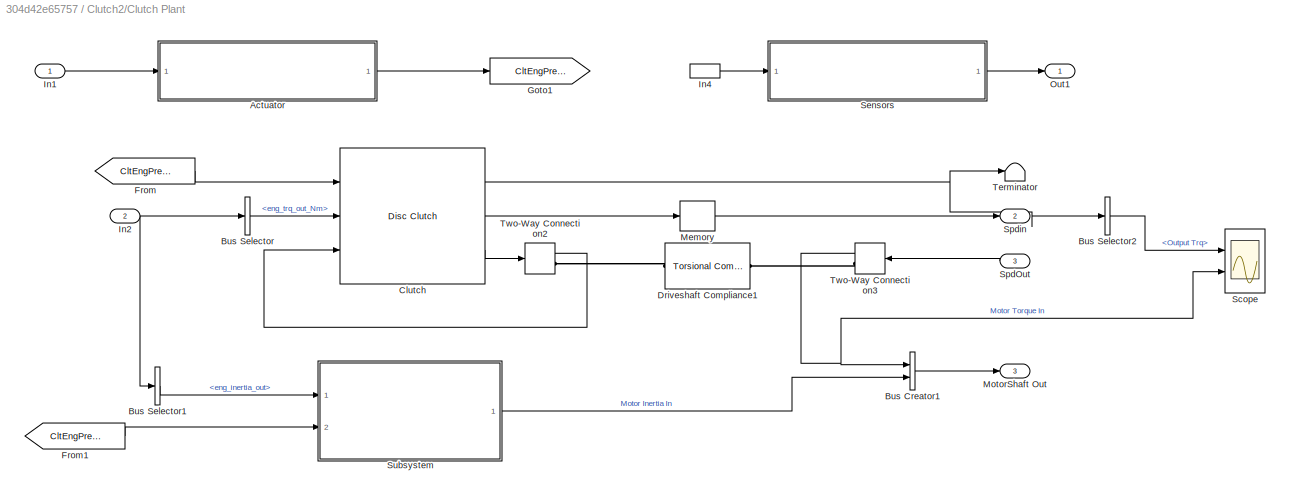
BLOCK [SubSystem] Clutch2/Clutch Plant
  Ports = [3, 3]
  RequestExecContextInheritance = off
  Variant = off
BLOCK [SubSystem] Clutch2/Clutch Plant/ Actuator
  Ports = [1, 1]
  RequestExecContextInheritance = off
  Variant = off
BLOCK [Lookup_n-D] Clutch2/Clutch Plant/ Actuator/Actuator Position to Clutch Engagement Pressure
  BreakpointsForDimension1 = [0\n100\n200\n300\n400\n500\n600\n700\n800\n900\n1000\n1100\n1200\n1300\n1400\n1500\n1600\n1700\n1800\n1900\n2000\n2100\n2200\n2300\n2400\n2500\n2600\n2700\n2800\n2900\n3000\n3100\n3200\n3300\n3400\n3500\n3600\n3700\n3800\n3900\n4000\n4100\n4200\n4300\n4400\n4500\n4600\n4700\n4800\n4900\n5000\n5100\n5200\n5300\n5400\n5500\n5600\n5700\n5800\n5900\n6000\n6100\n6200\n6300\n6400\n\n]
  InternalRulePriority = Speed
  NumberOfTableDimensions = 1
  Ports = [1, 1]
  RndMeth = Simplest
  Table = [892800\n892800\n892800\n833280\n773760\n714240\n654720\n595200\n535680\n476160\n416640\n357120\n297600\n238080\n178560\n119040\n59520\n0\n0\n0\n0\n0\n0\n0\n0\n0\n0\n0\n0\n0\n0\n0\n0\n0\n0\n0\n0\n0\n0\n0\n0\n0\n0\n0\n0\n0\n0\n0\n0\n0\n0\n0\n0\n0\n0\n0\n0\n0\n0\n0\n0\n0\n0\n0\n0\n\n\n]
BLOCK [BusSelector] Clutch2/Clutch Plant/ Actuator/Bus Selector
  OutputAsBus = off
  OutputSignals = CY01_posCurr
  Ports = [1, 1]
BLOCK [Outport] Clutch2/Clutch Plant/ Actuator/Clutch Engagement Pressure Command
  IconDisplay = Port number
BLOCK [Inport] Clutch2/Clutch Plant/ Actuator/In1
  IconDisplay = Port number
BLOCK [SubSystem] Clutch2/Clutch Plant/ Sensors 
  Ports = [1, 1]
  RequestExecContextInheritance = off
  Variant = off
BLOCK [Lookup_n-D] Clutch2/Clutch Plant/ Sensors /Actuator Position to Actuator Pressure
  BreakpointsForDimension1 = [0\n300\n400\n500\n600\n700\n800\n900\n1000\n1100\n1200\n1300\n1400\n1500\n1600\n1700\n1800\n1900\n2000\n2100\n2200\n2300\n2400\n2500\n2600\n2700\n2800\n2900\n3000\n3100\n3200\n3300\n3400\n3500\n3600\n3700\n3800\n3900\n4000\n4100\n4200\n4300\n4400\n4500\n4600\n4650\n]
  InternalRulePriority = Speed
  NumberOfTableDimensions = 1
  Ports = [1, 1]
  RndMeth = Simplest
  Table = [0.4\n1.2\n2.6\n4\n5.6\n6.8\n8.6\n10.4\n12.2\n14\n15.8\n17.4\n18.8\n19.6\n20.2\n20\n19.8\n19.6\n19\n18.8\n18.4\n18\n17.8\n17.6\n17.4\n17.2\n17\n16.8\n16.6\n16.6\n16.6\n16.8\n17\n17.2\n17.4\n17.8\n18\n18.4\n18.6\n19\n19.4\n20.4\n21.2\n25.4\n36.4\n41\n]
BLOCK [BusCreator] Clutch2/Clutch Plant/ Sensors /Bus Creator
  DisplayOption = bar
  InheritFromInputs = on
  Inputs = 1
  Ports = [1, 1]
BLOCK [BusSelector] Clutch2/Clutch Plant/ Sensors /Bus Selector
  OutputAsBus = off
  OutputSignals = CY01_posCurr
  Ports = [1, 1]
BLOCK [Inport] Clutch2/Clutch Plant/ Sensors /In1
  IconDisplay = Port number
BLOCK [Outport] Clutch2/Clutch Plant/ Sensors /Pressure
  IconDisplay = Port number
BLOCK [BusCreator] Clutch2/Clutch Plant/Bus Creator1
  DisplayOption = bar
  InheritFromInputs = on
  Inputs = 2
  Ports = [2, 1]
BLOCK [BusSelector] Clutch2/Clutch Plant/Bus Selector
  OutputAsBus = off
  OutputSignals = eng_trq_out_Nm
  Ports = [1, 1]
BLOCK [BusSelector] Clutch2/Clutch Plant/Bus Selector1
  OutputAsBus = off
  OutputSignals = eng_inertia_out
  Ports = [1, 1]
BLOCK [BusSelector] Clutch2/Clutch Plant/Bus Selector2
  OutputAsBus = off
  OutputSignals = Output.Output Trq
  Ports = [1, 1]
BLOCK [Reference] Clutch2/Clutch Plant/Clutch  REF=autolibcoupling/Disc Clutch
  Ports = [3, 3]
  SourceBlock = autolibcoupling/Disc Clutch
  SourceProductBaseCode = PW
  SourceProductName = Powertrain Blockset
  SourceType = Disc Clutch
BLOCK [Reference] Clutch2/Clutch Plant/Driveshaft Compliance1  REF=autolibcoupling/Torsional Compliance
  Ports = [0, 0, 0, 0, 0, 1, 1]
  SourceBlock = autolibcoupling/Torsional Compliance
  SourceProductName = Powertrain Blockset
  SourceType = Torsional Compliance
BLOCK [From] Clutch2/Clutch Plant/From
  GotoTag = CltEngPressCmd
  TagVisibility = global
BLOCK [From] Clutch2/Clutch Plant/From1
  GotoTag = CltEngPressCmd
  TagVisibility = global
BLOCK [Goto] Clutch2/Clutch Plant/Goto1
  GotoTag = CltEngPressCmd
  TagVisibility = global
BLOCK [Inport] Clutch2/Clutch Plant/In1
  IconDisplay = Port number
BLOCK [Inport] Clutch2/Clutch Plant/In2
  IconDisplay = Port number
  Port = 2
BLOCK [InportShadow] Clutch2/Clutch Plant/In4
  IconDisplay = Port number
BLOCK [Memory] Clutch2/Clutch Plant/Memory
BLOCK [Outport] Clutch2/Clutch Plant/MotorShaft Out
  IconDisplay = Port number
  Port = 3
BLOCK [Outport] Clutch2/Clutch Plant/Out1
  IconDisplay = Port number
BLOCK [Scope] Clutch2/Clutch Plant/Scope
  NumInputPorts = 2
  Ports = [2]
  ScopeSpecificationString = Simulink.scopes.TimeScopeBlockCfg('CurrentConfiguration', extmgr.ConfigurationSet(extmgr.Configuration('Core','General UI',true),extmgr.Configuration('Core','Source UI',true),extmgr.Configuration('Sources','WiredSimulink',true,'DataLoggingVariableName','ScopeData1'),extmgr.Configuration('Visuals','Time Domain',true,'SerializedDisplays',{struct('MinYLimReal','-86.83328','MaxYLimReal','264.23593','Y...<+1459ch>
BLOCK [Inport] Clutch2/Clutch Plant/SpdOut
  IconDisplay = Port number
  Port = 3
BLOCK [Outport] Clutch2/Clutch Plant/Spdin
  IconDisplay = Port number
  Port = 2
BLOCK [SubSystem] Clutch2/Clutch Plant/Subsystem
  Ports = [2, 1]
  RequestExecContextInheritance = off
  Variant = off
BLOCK [Inport] Clutch2/Clutch Plant/Subsystem/Clutch Engagement Pressure
  IconDisplay = Port number
  Port = 2
BLOCK [Constant] Clutch2/Clutch Plant/Subsystem/Clutch Inertia
  Value = clt.plant.init.inertia
BLOCK [Inport] Clutch2/Clutch Plant/Subsystem/Engine Inertia Out
  IconDisplay = Port number
BLOCK [Outport] Clutch2/Clutch Plant/Subsystem/Motor Inertia In
  IconDisplay = Port number
BLOCK [Sum] Clutch2/Clutch Plant/Subsystem/Sum5
  IconShape = round
  Inputs = ++|
  Ports = [2, 1]
BLOCK [Switch] Clutch2/Clutch Plant/Subsystem/Switch2
  Criteria = u2 > Threshold
BLOCK [Terminator] Clutch2/Clutch Plant/Terminator
BLOCK [TwoWayConnection] Clutch2/Clutch Plant/Two-Way Connection2
  Ports = [1, 1, 0, 0, 0, 0, 1]
BLOCK [TwoWayConnection] Clutch2/Clutch Plant/Two-Way Connection3
  Ports = [1, 1, 0, 0, 0, 0, 1]
BLOCK [Inport] Clutch2/MotSpd
  IconDisplay = Port number
  Port = 2
BLOCK [Inport] Clutch2/ShaftIn
  IconDisplay = Port number
BLOCK [Outport] Clutch2/ShaftOut
  IconDisplay = Port number
  Port = 2
BLOCK [Outport] Clutch2/SpdIn
  IconDisplay = Port number
  Port = 3
BLOCK [Inport] Clutch2/from HSC
  IconDisplay = Port number
  Port = 3
BLOCK [Outport] Clutch2/to HSC
  IconDisplay = Port number
BLOCK [Constant] ErrCAN
  Value = 0
BLOCK [Constant] ErrHW
  Value = 0
BLOCK [Constant] ErrMech
  Value = 0
BLOCK [Constant] ErrTempHigh
  Value = 0
BLOCK [Constant] ErrTempWarn
  Value = 0
BLOCK [Constant] ErrUBattLow
  Value = 0
BLOCK [Ground] Ground
BLOCK [Reference] HeartBeat   REF=simulink/Sources/Counter
Free-Running
  Ports = [0, 1]
  SourceBlock = simulink/Sources/Counter\nFree-Running
  SourceProductBaseCode = SL
  SourceProductName = Simulink
  SourceType = Counter Free-Running
BLOCK [Step] Mode
  After = 7
  SampleTime = 0
BLOCK [Step] Position
  After = 7000
  SampleTime = 0
BLOCK [Step] Pressure
  After = 40
  SampleTime = 0
BLOCK [Terminator] Terminator1
BLOCK [Terminator] Terminator2
ANNOTATION (root): Test Vector
ANNOTATION Camaro Fault Detection/Component Diagnostic: Component Diagnostics
ANNOTATION Camaro Fault Detection/Component Diagnostic: Component Status Setting Rule xxx_CompStatus could be 0, 1, 2 or 3 0: component needs to be offline 1: component needs torque plant to deliver creep torque 2: component needs torque plant to limit maximum torque delivery 3: component needs torque plant to operate normally
ANNOTATION Camaro Fault Detection/Component Diagnostic/Clutch Component Diagnostic: 0: component Offline 1: component Online
ANNOTATION Camaro Fault Detection/Component Diagnostic/Override Clutch Status: Override Switch Subsystem
ANNOTATION Camaro Fault Detection/Component Diagnostic/Override Clutch Status: This subsystem is used to override the model value of a signal to a constant value
ANNOTATION Camaro Fault Detection/Input Conversions: Input Conversions and Override Switches
ANNOTATION Camaro Fault Detection/Input Conversions: These subsystems convert variable types to match those used in the supervisor. In addition, override switches installed on each signal can be used to manually override and signal for testing purposes
ANNOTATION Camaro Fault Detection/Input Conversions/Clutch_Conversions: CCM: Input Conversions and Override Switches (Clutch Control Module/Actuator)
ANNOTATION Camaro Fault Detection/Input Conversions/Clutch_Conversions/Override  rollingAliveCnt [123]: Override Switch Subsystem
ANNOTATION Camaro Fault Detection/Input Conversions/Clutch_Conversions/Override  rollingAliveCnt [123]: This subsystem is used to override the model value of a signal to a constant value
ANNOTATION Camaro Fault Detection/Input Conversions/Clutch_Conversions/Override Checksum [0-255]: Override Switch Subsystem
ANNOTATION Camaro Fault Detection/Input Conversions/Clutch_Conversions/Override Checksum [0-255]: This subsystem is used to override the model value of a signal to a constant value
ANNOTATION Camaro Fault Detection/Input Conversions/Clutch_Conversions/Override Error CAN [0-1]: Override Switch Subsystem
ANNOTATION Camaro Fault Detection/Input Conversions/Clutch_Conversions/Override Error CAN [0-1]: This subsystem is used to override the model value of a signal to a constant value
ANNOTATION Camaro Fault Detection/Input Conversions/Clutch_Conversions/Override Error Hardware [0-1]: Override Switch Subsystem
ANNOTATION Camaro Fault Detection/Input Conversions/Clutch_Conversions/Override Error Hardware [0-1]: This subsystem is used to override the model value of a signal to a constant value
ANNOTATION Camaro Fault Detection/Input Conversions/Clutch_Conversions/Override Error Mechanical [0-1]: Override Switch Subsystem
ANNOTATION Camaro Fault Detection/Input Conversions/Clutch_Conversions/Override Error Mechanical [0-1]: This subsystem is used to override the model value of a signal to a constant value
ANNOTATION Camaro Fault Detection/Input Conversions/Clutch_Conversions/Override Mode [0-7]: Override Switch Subsystem
ANNOTATION Camaro Fault Detection/Input Conversions/Clutch_Conversions/Override Mode [0-7]: This subsystem is used to override the model value of a signal to a constant value
ANNOTATION Camaro Fault Detection/Input Conversions/Clutch_Conversions/Override Position [deg]: Override Switch Subsystem
ANNOTATION Camaro Fault Detection/Input Conversions/Clutch_Conversions/Override Position [deg]: This subsystem is used to override the model value of a signal to a constant value
ANNOTATION Camaro Fault Detection/Input Conversions/Clutch_Conversions/Override Pressure [bar]: Override Switch Subsystem
ANNOTATION Camaro Fault Detection/Input Conversions/Clutch_Conversions/Override Pressure [bar]: This subsystem is used to override the model value of a signal to a constant value
ANNOTATION Camaro Fault Detection/Input Conversions/Clutch_Conversions/Override Temp Error [0-1]: Override Switch Subsystem
ANNOTATION Camaro Fault Detection/Input Conversions/Clutch_Conversions/Override Temp Error [0-1]: This subsystem is used to override the model value of a signal to a constant value
ANNOTATION Camaro Fault Detection/Input Conversions/Clutch_Conversions/Override Temp Warning [0-1]: Override Switch Subsystem
ANNOTATION Camaro Fault Detection/Input Conversions/Clutch_Conversions/Override Temp Warning [0-1]: This subsystem is used to override the model value of a signal to a constant value
ANNOTATION Camaro Fault Detection/Input Conversions/Clutch_Conversions/Override Voltage Error [0-1]: Override Switch Subsystem
ANNOTATION Camaro Fault Detection/Input Conversions/Clutch_Conversions/Override Voltage Error [0-1]: This subsystem is used to override the model value of a signal to a constant value
ANNOTATION Camaro Fault Detection/Signal Diagnostic: Signal Diagnostics
ANNOTATION Camaro Fault Detection/Signal Diagnostic: These subsystems evaluate each signal for proper value range and other checks
ANNOTATION Camaro Fault Detection/Signal Diagnostic/Clutch Signal Diagnostic: CCM : Signal Diagnostic
ANNOTATION Camaro Fault Detection/Signal Diagnostic/Subsystem1: Signal Naming Rule Example: xxx_yyy_[z]_SigValid xxx: source of the signal (Drv, Clu, BCM, ECM, TCM, BMS and MCU) yyy: description of the signal z: unit of the signal (V, A, Nm, m/s, %, 01, 0123, etc.)
ANNOTATION Camaro Fault Detection/Signal Diagnostic/Subsystem1: Signal Valid Setting Rule xxx_yyy_[z]_SigValid could be 0 or 1 0: signal invalid 1: signal vaild
ANNOTATION Camaro Fault Detection/SystemDiag1: 0: SystemStatus: Offline 1: SystemStatus Online 2: SystemStatus Limited
ANNOTATION Camaro Fault Detection/SystemDiag1: Powertrain Diagnostics
ANNOTATION Camaro Fault Detection/SystemDiag1: These subsystems evaluate each powertrain to determine the level of functionality allowed based on each of its components.
ANNOTATION Camaro Fault Detection/SystemDiag1/Combined_SystemDiagnostics: Combined_Powertrain: System Diagnostics
ANNOTATION Camaro Fault Detection/SystemDiag1/Combined_SystemDiagnostics/Override Combined_System Status: Override Switch Subsystem
ANNOTATION Camaro Fault Detection/SystemDiag1/Combined_SystemDiagnostics/Override Combined_System Status: This subsystem is used to override the model value of a signal to a constant value
ANNOTATION Camaro Fault Detection/SystemDiag1/eSystemDiagnostics: 0: SystemStatus: Offline 1: SystemStatus Limited 2: SystemStatus Online
ANNOTATION Camaro Fault Detection/SystemDiag1/eSystemDiagnostics: BMS_Status: Offline: 0 Limited: 1 Online: 2 MCU_Status Offline: 0 Limited: 1 Online :2
ANNOTATION Camaro Fault Detection/SystemDiag1/eSystemDiagnostics: eSystem: System Diagnostics
ANNOTATION Camaro Fault Detection/SystemDiag1/eSystemDiagnostics/Override eSystem Status: Override Switch Subsystem
ANNOTATION Camaro Fault Detection/SystemDiag1/eSystemDiagnostics/Override eSystem Status: This subsystem is used to override the model value of a signal to a constant value
ANNOTATION Camaro Fault Detection/SystemDiag1/iceSystemDiagnostics: iceSystem: System Diagnostics
ANNOTATION Camaro Fault Detection/SystemDiag1/iceSystemDiagnostics/Override iceSystem Status: Override Switch Subsystem
ANNOTATION Camaro Fault Detection/SystemDiag1/iceSystemDiagnostics/Override iceSystem Status: This subsystem is used to override the model value of a signal to a constant value
LINE Bus Creator:1 -> Camaro Fault Detection:1
LINE CRC :1 -> Bus Creator:2
LINE Camaro Fault Detection:1 -> Clutch2:1
LINE Clutch2:2 -> Terminator1:1
LINE Clutch2:3 -> Terminator2:1
LINE ErrCAN:1 -> Bus Creator:3
LINE ErrHW:1 -> Bus Creator:4
LINE ErrMech:1 -> Bus Creator:5
LINE ErrTempHigh:1 -> Bus Creator:7
LINE ErrTempWarn:1 -> Bus Creator:6
LINE ErrUBattLow:1 -> Bus Creator:8
NET Ground:1 -> Clutch2:2, Clutch2:3
LINE HeartBeat :1 -> Bus Creator:1
LINE Mode:1 -> Bus Creator:11
LINE Position:1 -> Bus Creator:10
LINE Pressure:1 -> Bus Creator:9
note: NET lines group one-source signal fan-out (src -> all destinations, sorted); 1:1 wires keep LINE
CHART Camaro Fault Detection/SystemDiag1/Combined_SystemDiagnostics/Combined_System_Diagnostics states=3 transitions=7
  STATE_LABEL 'CombinedSystem_Online\nen: Combined_SystemStatus=2'
  STATE_LABEL 'Combined_System_Offline\nen:Combined_SystemStatus=0'
  STATE_LABEL 'Combined_System_Limited\nen: Combined_SystemStatus=1'
CHART Camaro Fault Detection/SystemDiag1/eSystemDiagnostics/eSystem_Diagnostics states=3 transitions=7
  STATE_LABEL 'eSystem_Offline\nen:eSystemStatus=0;'
  STATE_LABEL 'eSystem_Online\nen: eSystemStatus=2;'
  STATE_LABEL 'eSystem_Limited\nen: eSystemStatus=1;'
CHART Camaro Fault Detection/SystemDiag1/iceSystemDiagnostics/iceSystem_Diagnostics states=3 transitions=7
  STATE_LABEL 'iceSystem_Online\nen: iceSystemStatus=2;'
  STATE_LABEL 'iceSystem_Offline\nen:iceSystemStatus=0;'
  STATE_LABEL 'iceSystem_Limited\nen: iceSystemStatus=1;'
CHART Camaro Fault Detection/Signal Diagnostic/Clutch Signal Diagnostic/Rolling Alive Counter Detection/Chart states=3 transitions=4
  STATE_LABEL 'Off\nen:flag=0;'
  STATE_LABEL 'Alive\nen:flag=1;'
  STATE_LABEL 'Dead\nen:flag=0;'
CHART Camaro Fault Detection/Component Diagnostic/Clutch Component Diagnostic/Clutch_Comp_Diag states=2 transitions=3
  STATE_LABEL 'Clutch_Input_Offline\nen: Clutch_Status=0;'
  STATE_LABEL 'Clutch_Input_Online\nen: Clutch_Status=1;'
